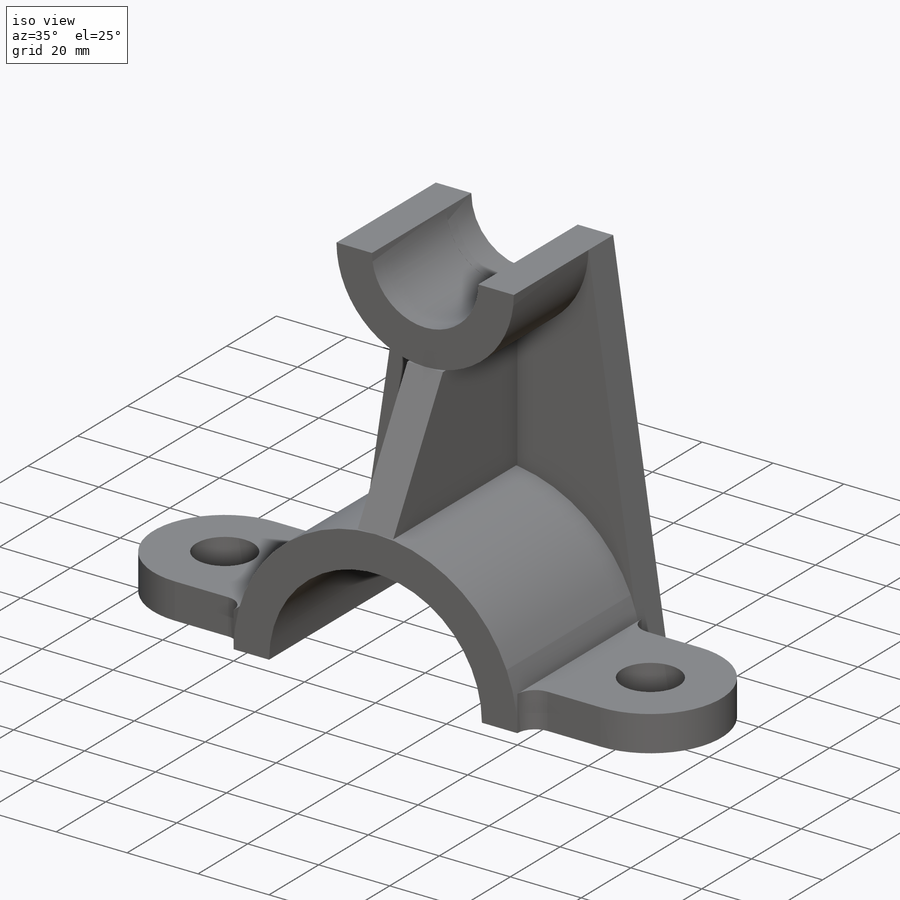
[diagram: iso view]
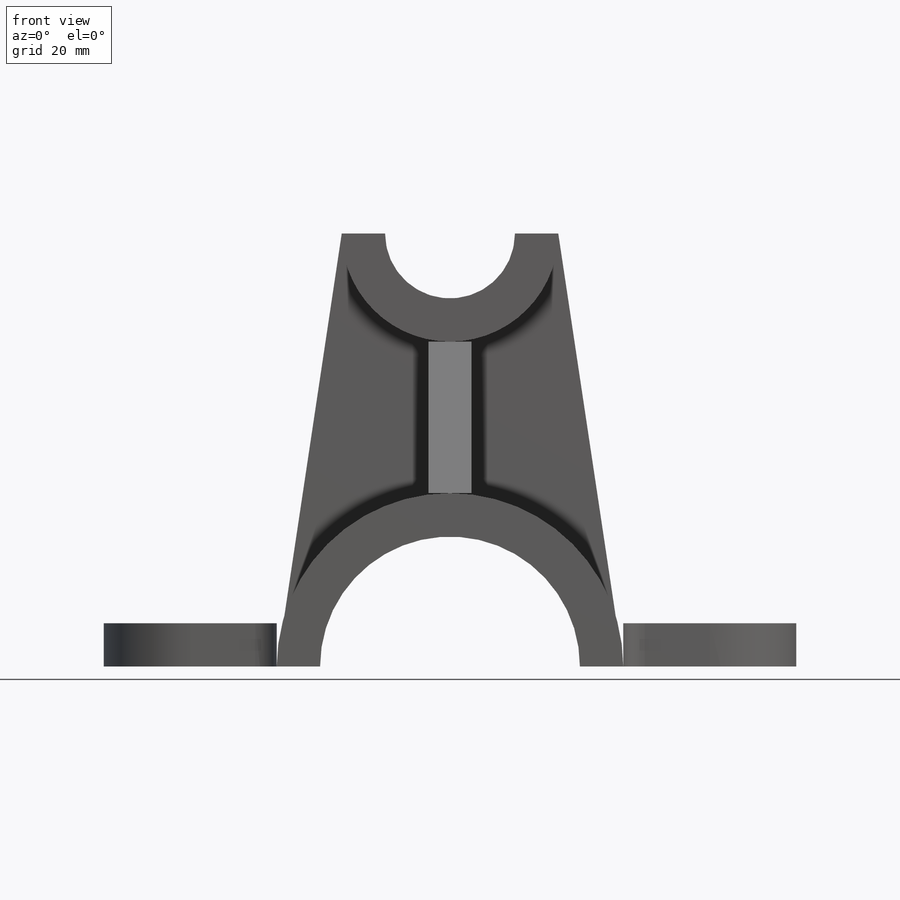
[diagram: front view]
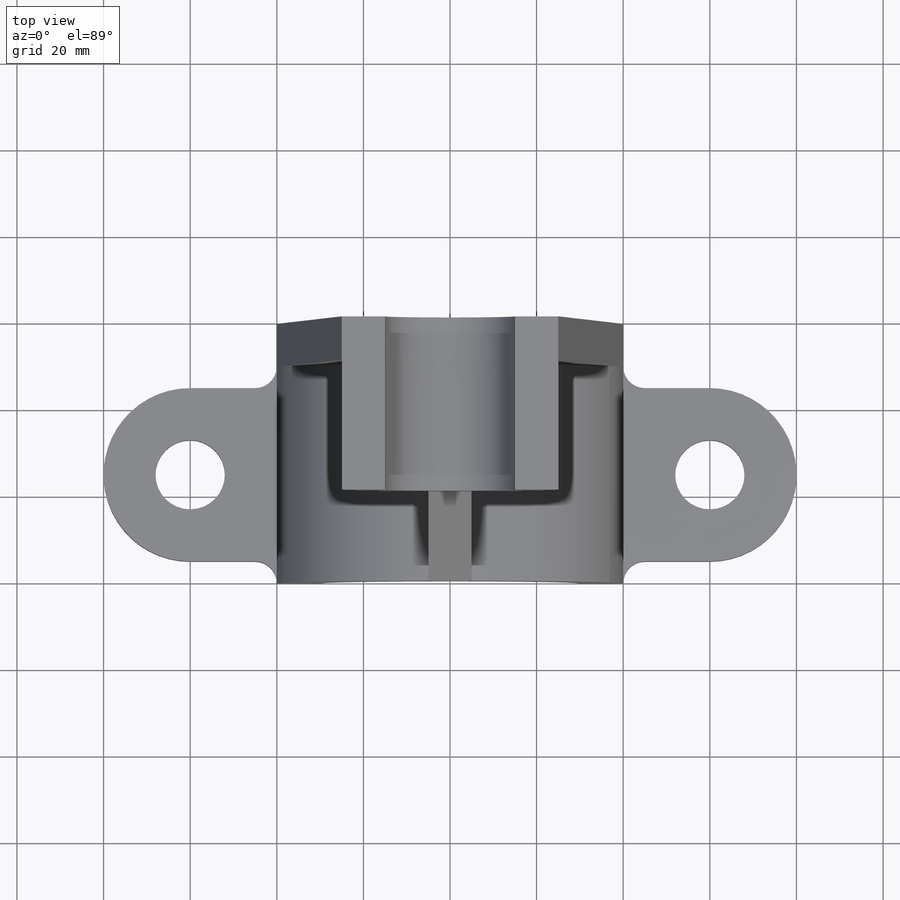
[diagram: top view]
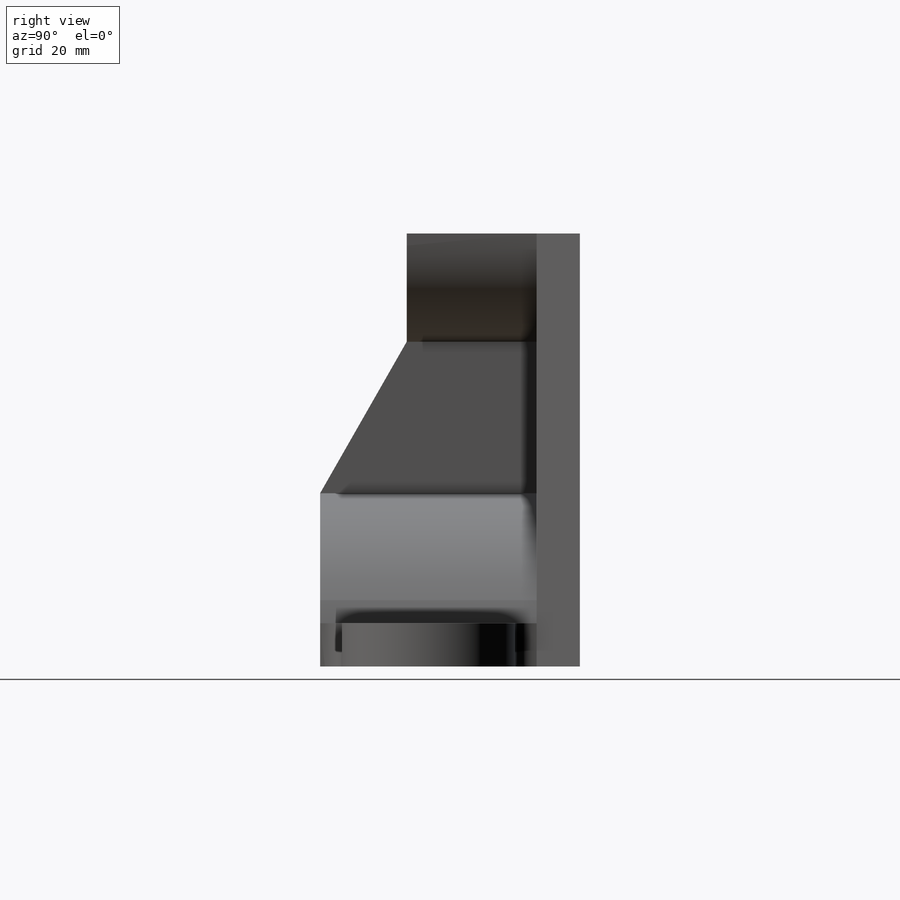
[diagram: right view]
SOLIDWORKS PART (.sldprt)
format: sldprt  version: not decoded by parser v0  size: 249,344 bytes
history: native  units: mm
features: sketch x5, extrude x5, plane x2, material x1, mirror x1 (+12 scaffold rows collapsed)
feature tree (26):
  scaffold x12  (default folders/planes/origin — collapsed)
  material  "Material <not specified>"
  sketch  "Sketch1"  dims[c1.D1=40.0mm c1.D2=60.0mm c1.D3=40.0mm c2.D1=80.0mm]
  extrude  "Boss-Extrude1"  Depth=50mm
  sketch  "Sketch2"  dims[D1=35.0mm D2=30.0mm]
  extrude  "Boss-Extrude2"  Depth=10mm
  plane  "Plane1"  Offset=30mm
  sketch  "Sketch4"  dims[D1=30.0mm D2=50.0mm D3=25.0mm]
  extrude  "Boss-Extrude3"  Depth=30mm
  plane  "Plane2"  Offset=50mm
  sketch  "Sketch5"  dims[D1=10.0mm]
  extrude  "Boss-Extrude5"  Depth=10mm
  sketch  "Sketch6"  dims[D4=16.0mm D1=20.0mm D2=40.0mm D3=5.0mm D5=25.0mm D6=5.0mm]
  extrude  "Boss-Extrude9"  Depth=10mm
  mirror  "Mirror3"
decode coverage: 10 of 11 modeling features carry decoded parameters
note: suppression state not decoded; provenance and decode notes live in map.json
